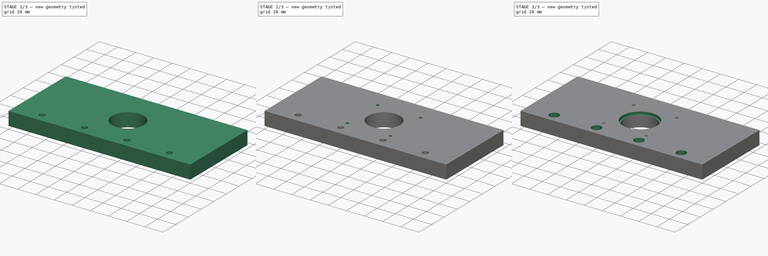
[diagram: build sequence overview — one tinted view per stage of 3, left to right]
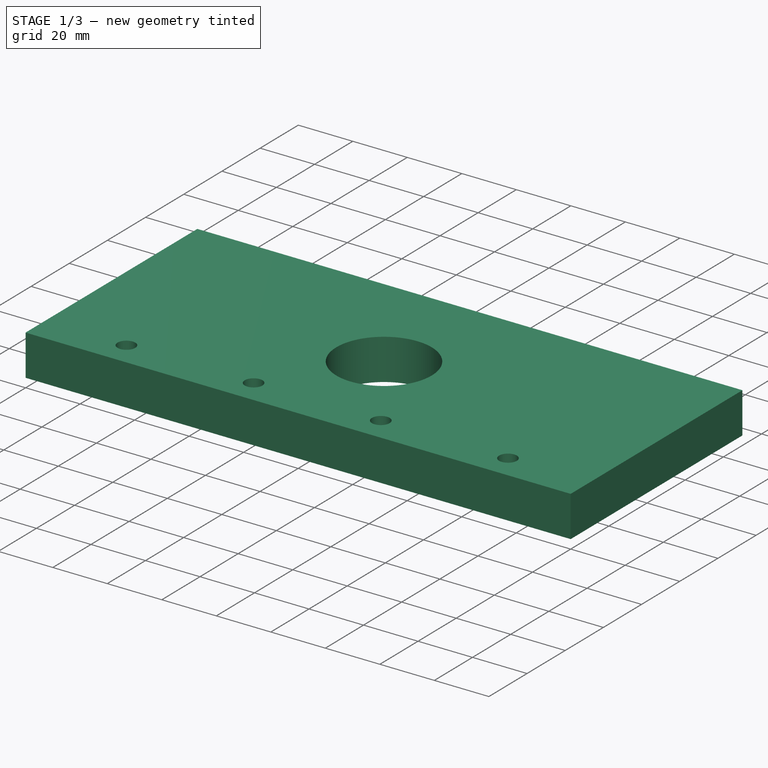
[diagram: stage 1 of 3 — iso view after this stage's code; geometry added in this stage tinted green]
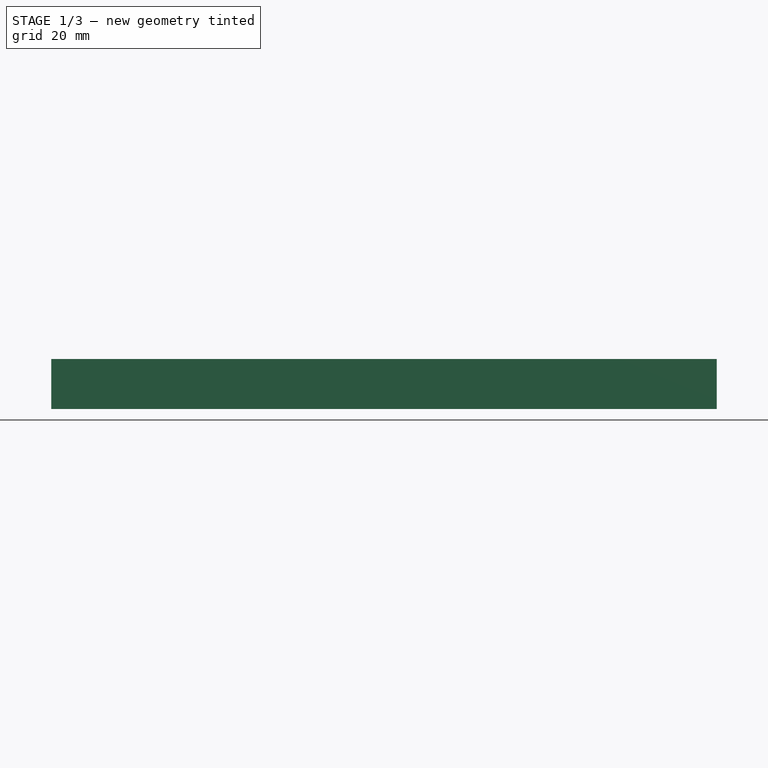
[diagram: stage 1 of 3 — front view after this stage's code; geometry added in this stage tinted green]
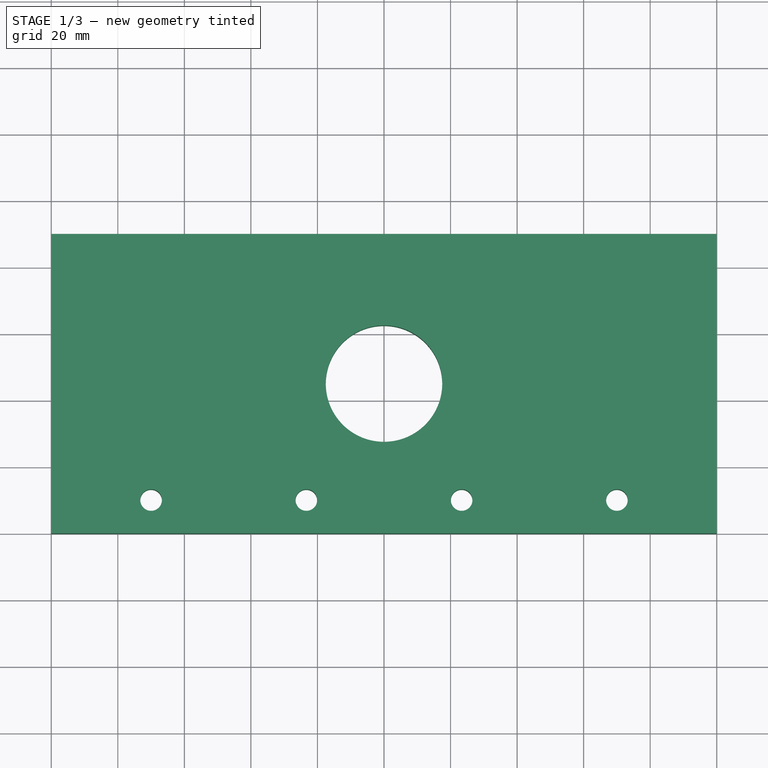
[diagram: stage 1 of 3 — top view after this stage's code; geometry added in this stage tinted green]
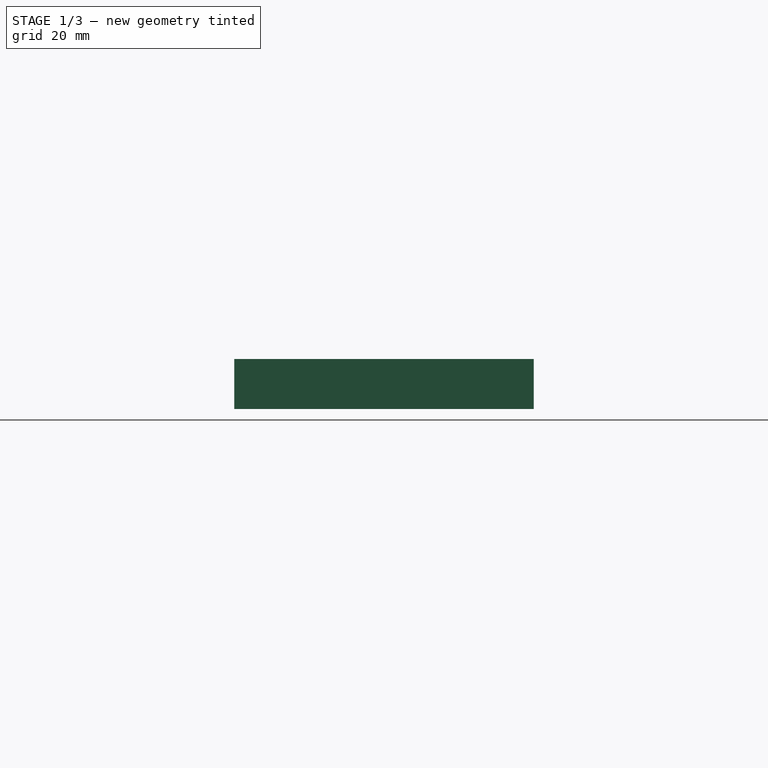
[diagram: stage 1 of 3 — right view after this stage's code; geometry added in this stage tinted green]
FCSTD DOCUMENT  (FreeCAD 0.17R9796 (Git))
Label: zmotormount
License: All rights reserved
LicenseURL: http://en.wikipedia.org/wiki/All_rights_reserved
objects: Sketcher::SketchObject×5, PartDesign::Pocket×4, PartDesign::Pad×1, PartDesign::Body×1
note: 16 computed .brp shape members not serialized (recipe doc carries the construction recipe); baked Part::Feature solids carry a one-line shape summary decoded from their .brp

FEATURE [Sketcher::SketchObject] Sketch
  MapMode = 5
  Support = -> [XY_Plane]
  sketch-geometry (4):
    g0: LineSegment StartX=0 StartY=90 StartZ=0 EndX=200 EndY=90 EndZ=0
    g1: LineSegment StartX=200 StartY=90 StartZ=0 EndX=200 EndY=0 EndZ=0
    g2: LineSegment StartX=200 StartY=0 StartZ=0 EndX=0 EndY=0 EndZ=0
    g3: LineSegment StartX=0 StartY=0 StartZ=0 EndX=0 EndY=90 EndZ=0
  constraints (11):
    c: Coincident(g0,g1)
    c: Coincident(g1,g2)
    c: Coincident(g2,g3)
    c: Coincident(g3,g0)
    c: Horizontal(g0)
    c: Horizontal(g2)
    c: Vertical(g1)
    c: Vertical(g3)
    c: Coincident(g2,g-1)
    c: DistanceY(g-1,g0) = 90
    c: DistanceX(g-1,g1) = 200
FEATURE [PartDesign::Pad] Pad
  Length = 15
  Length2 = 100
  Profile = -> Sketch
  Type = 0
FEATURE [Sketcher::SketchObject] Sketch001
  MapMode = 5
  Placement = pos=(0,0,15) rot=(0,0,1;0rad)
  Support = -> [Pad]
  sketch-geometry (5):
    g0: Circle CenterX=100 CenterY=45 CenterZ=0 NormalX=0 NormalY=0 NormalZ=1 Radius=17.5
    g1: Circle CenterX=30 CenterY=10 CenterZ=0 NormalX=0 NormalY=0 NormalZ=1 Radius=3.25
    g2: Circle CenterX=76.67 CenterY=10 CenterZ=0 NormalX=0 NormalY=0 NormalZ=1 Radius=3.25
    g3: Circle CenterX=123.33 CenterY=10 CenterZ=0 NormalX=0 NormalY=0 NormalZ=1 Radius=3.25
    g4: Circle CenterX=170 CenterY=10 CenterZ=0 NormalX=0 NormalY=0 NormalZ=1 Radius=3.25
  constraints (15):
    c: DistanceX(g-1,g0) = 100
    c: DistanceY(g-1,g0) = 45
    c: Radius(g0) = 17.5
    c: DistanceX(g-1,g1) = 30
    c: DistanceX(g-1,g4) = 170
    c: DistanceX(g-1,g3) = 123.33
    c: DistanceX(g-1,g2) = 76.67
    c: Radius(g1) = 3.25
    c: Equal(g1,g2)
    c: Equal(g1,g3)
    c: Equal(g1,g4)
    c: DistanceY(g1,g2) = 0
    c: DistanceY(g2,g3) = 0
    c: DistanceY(g3,g4) = 0
    c: DistanceY(g-1,g1) = 10
FEATURE [PartDesign::Pocket] Pocket
  BaseFeature = -> Pad
  Length = 15
  Profile = -> Sketch001
  Type = 0
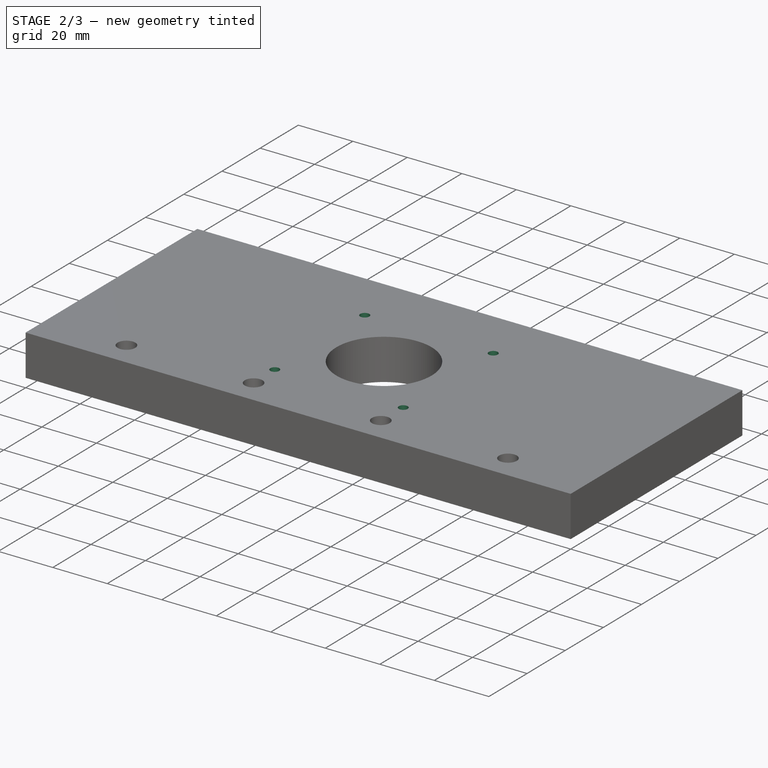
[diagram: stage 2 of 3 — iso view after this stage's code; geometry added in this stage tinted green]
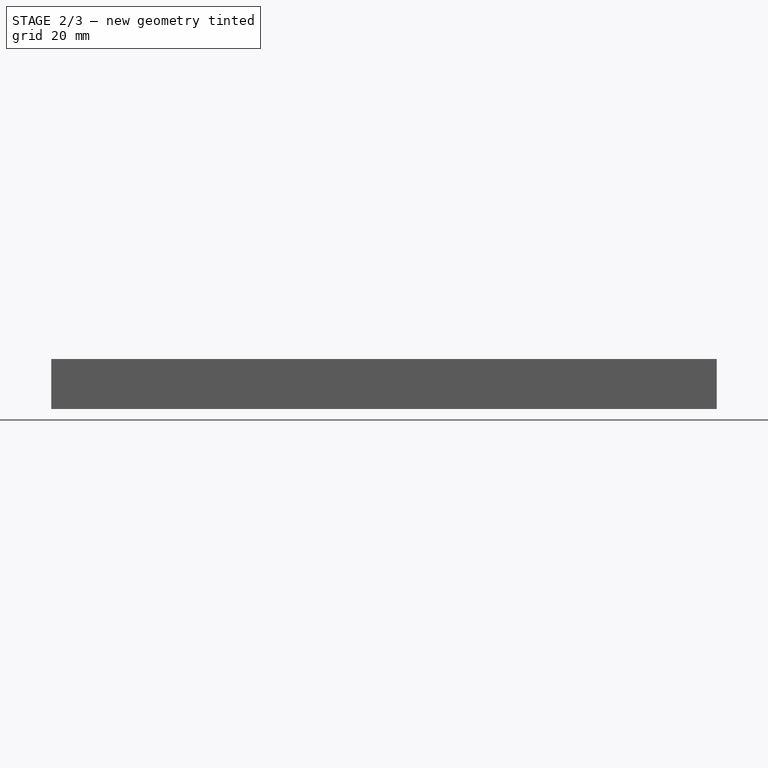
[diagram: stage 2 of 3 — front view after this stage's code; geometry added in this stage tinted green]
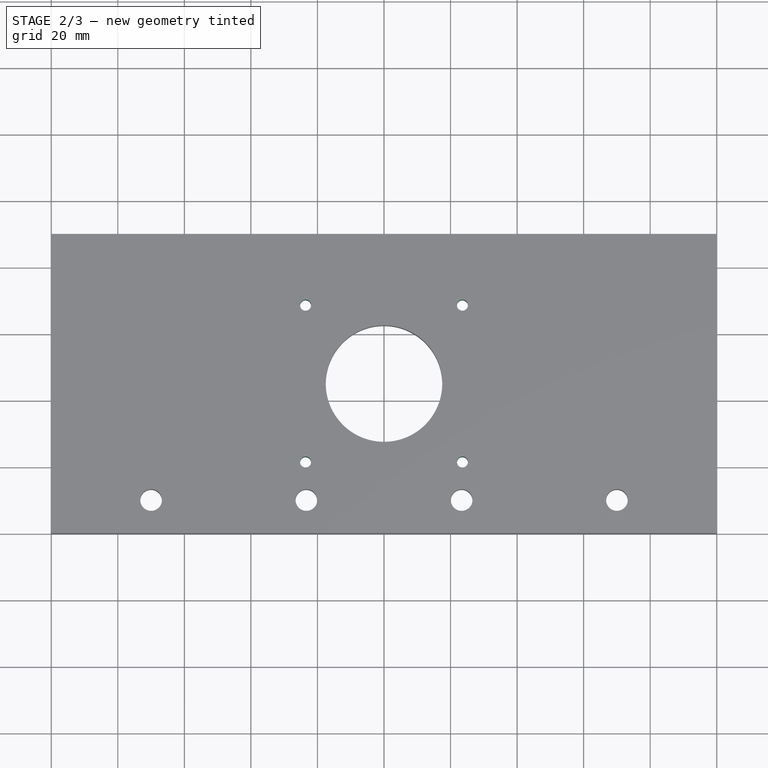
[diagram: stage 2 of 3 — top view after this stage's code; geometry added in this stage tinted green]
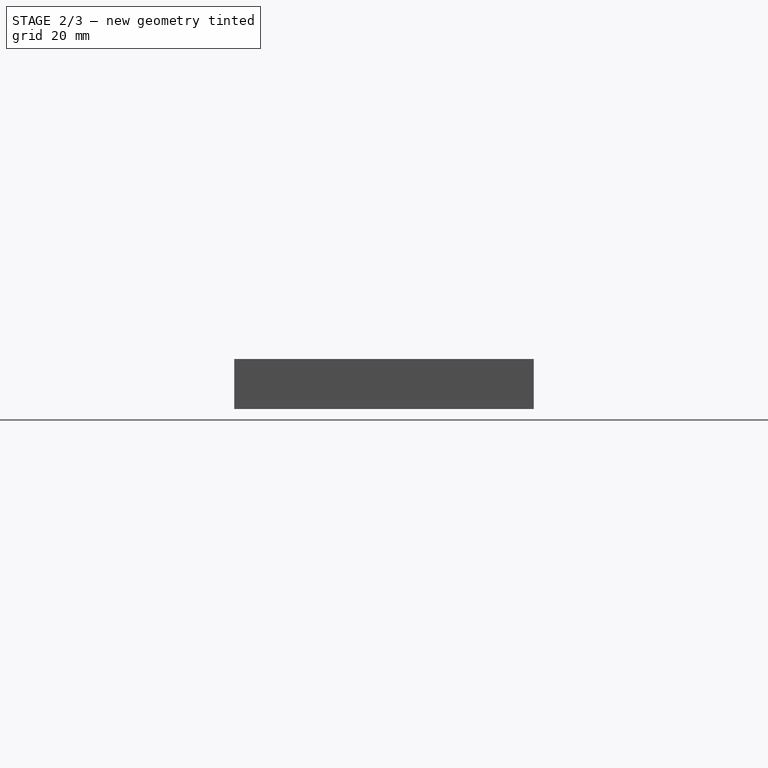
[diagram: stage 2 of 3 — right view after this stage's code; geometry added in this stage tinted green]
FEATURE [Sketcher::SketchObject] Sketch002
  MapMode = 5
  Placement = pos=(0,0,15) rot=(0,0,1;0rad)
  Support = -> [Pocket]
  sketch-geometry (4):
    g0: Circle CenterX=76.43 CenterY=68.57 CenterZ=0 NormalX=0 NormalY=0 NormalZ=1 Radius=1.65
    g1: Circle CenterX=123.57 CenterY=68.57 CenterZ=0 NormalX=0 NormalY=0 NormalZ=1 Radius=1.65
    g2: Circle CenterX=76.43 CenterY=21.43 CenterZ=0 NormalX=0 NormalY=0 NormalZ=1 Radius=1.65
    g3: Circle CenterX=123.57 CenterY=21.43 CenterZ=0 NormalX=0 NormalY=0 NormalZ=1 Radius=1.65
  constraints (12):
    c: DistanceX(g-1,g2) = 76.43
    c: DistanceX(g2,g3) = 47.14
    c: DistanceX(g0,g2) = 0
    c: DistanceX(g3,g1) = 0
    c: DistanceY(g2,g0) = 47.14
    c: DistanceY(g0,g1) = 0
    c: DistanceY(g3,g2) = 0
    c: DistanceY(g-1,g2) = 21.43
    c: Radius(g0) = 1.65
    c: Equal(g0,g1)
    c: Equal(g0,g3)
    c: Equal(g0,g2)
FEATURE [PartDesign::Pocket] Pocket001
  BaseFeature = -> Pocket
  Length = 15
  Profile = -> Sketch002
  Type = 0
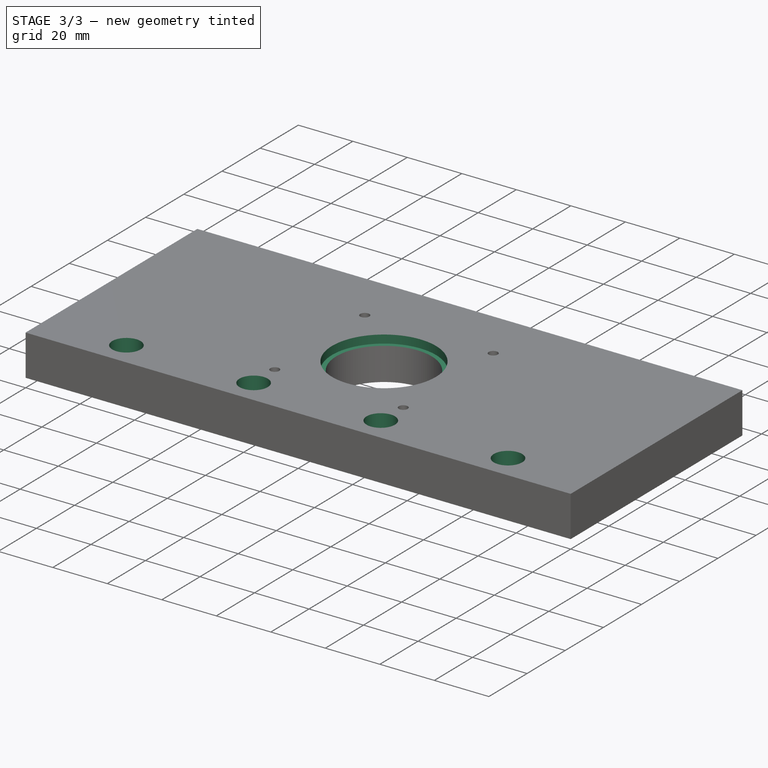
[diagram: stage 3 of 3 — iso view after this stage's code; geometry added in this stage tinted green]
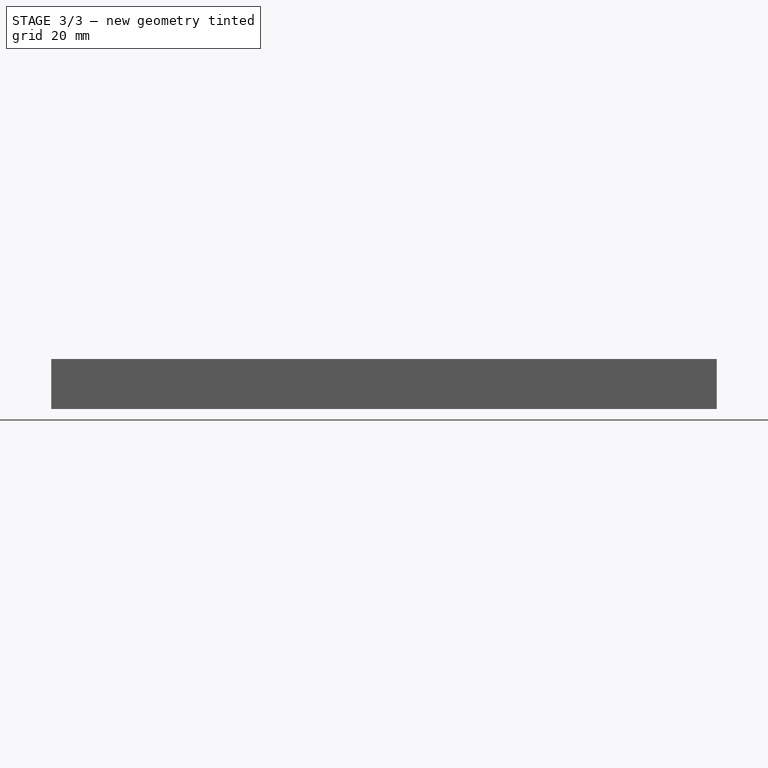
[diagram: stage 3 of 3 — front view after this stage's code; geometry added in this stage tinted green]
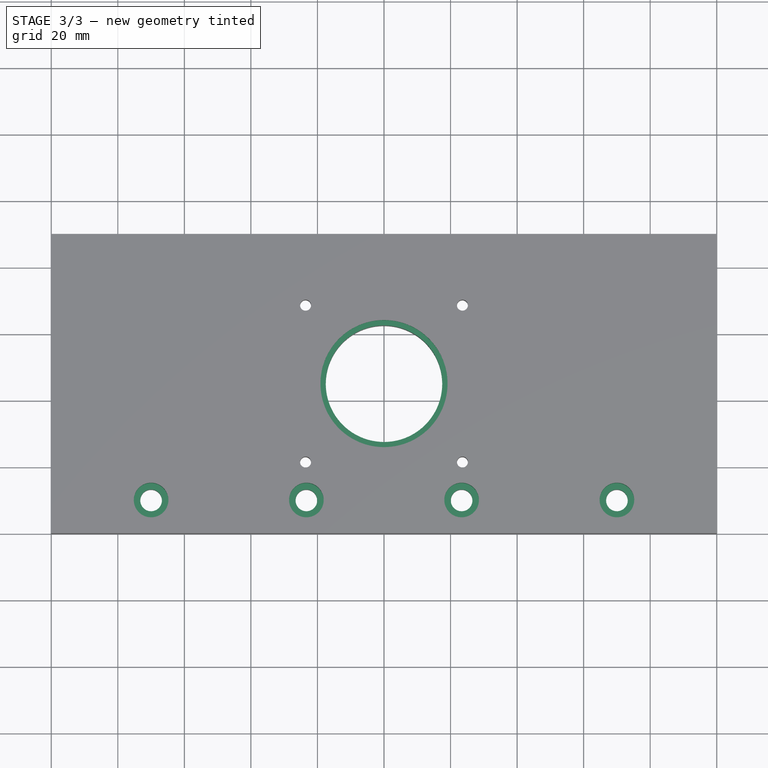
[diagram: stage 3 of 3 — top view after this stage's code; geometry added in this stage tinted green]
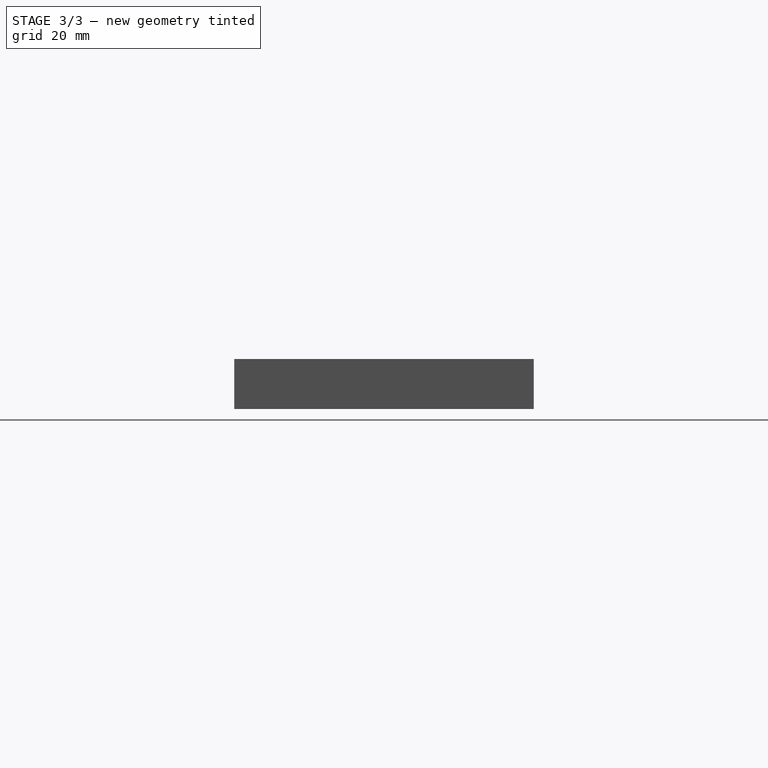
[diagram: stage 3 of 3 — right view after this stage's code; geometry added in this stage tinted green]
FEATURE [Sketcher::SketchObject] Sketch003
  MapMode = 5
  Placement = pos=(0,0,15) rot=(0,0,1;0rad)
  Support = -> [Pocket001]
  sketch-geometry (1):
    g0: Circle CenterX=100 CenterY=45 CenterZ=0 NormalX=0 NormalY=0 NormalZ=1 Radius=19.1
  constraints (3):
    c: DistanceX(g-1,g0) = 100
    c: DistanceY(g-1,g0) = 45
    c: Radius(g0) = 19.1
FEATURE [PartDesign::Pocket] Pocket002
  BaseFeature = -> Pocket001
  Length = 3
  Profile = -> Sketch003
  Type = 0
FEATURE [Sketcher::SketchObject] Sketch004
  MapMode = 5
  Placement = pos=(0,0,15) rot=(0,0,1;0rad)
  Support = -> [Pocket002]
  sketch-geometry (4):
    g0: Circle CenterX=30 CenterY=10 CenterZ=0 NormalX=0 NormalY=0 NormalZ=1 Radius=5.2
    g1: Circle CenterX=76.67 CenterY=10 CenterZ=0 NormalX=0 NormalY=0 NormalZ=1 Radius=5.2
    g2: Circle CenterX=123.33 CenterY=10 CenterZ=0 NormalX=0 NormalY=0 NormalZ=1 Radius=5.2
    g3: Circle CenterX=170 CenterY=10 CenterZ=0 NormalX=0 NormalY=0 NormalZ=1 Radius=5.2
  constraints (12):
    c: DistanceY(g2,g3) = 0
    c: DistanceY(g1,g2) = 0
    c: DistanceY(g0,g1) = 0
    c: DistanceX(g-1,g0) = 30
    c: DistanceX(g-1,g1) = 76.67
    c: DistanceX(g-1,g2) = 123.33
    c: DistanceX(g-1,g3) = 170
    c: DistanceY(g-1,g0) = 10
    c: Radius(g0) = 5.2
    c: Equal(g0,g1)
    c: Equal(g0,g2)
    c: Equal(g0,g3)
FEATURE [PartDesign::Pocket] Pocket003
  BaseFeature = -> Pocket002
  Length = 7
  Profile = -> Sketch004
  Type = 0
FEATURE [PartDesign::Body] Body
  Group = -> [Sketch,Pad,Sketch001,Pocket,Sketch002,Pocket001,Sketch003,Pocket002,Sketch004,Pocket003]
  Origin = -> BodyOrigin
  Tip = -> Pocket003
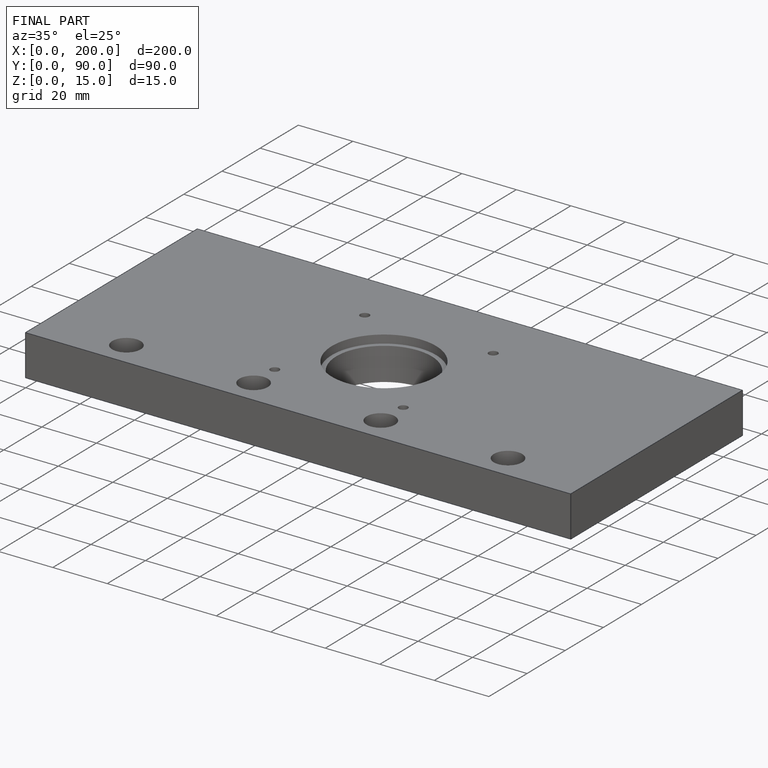
[diagram: finished part — iso view with bounding-box wireframe]
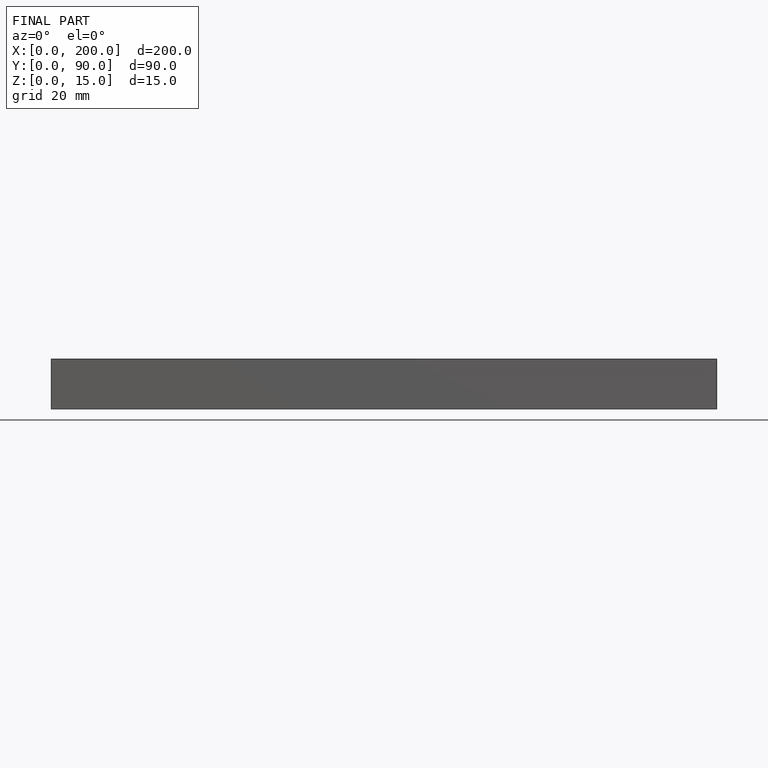
[diagram: finished part — front view with bounding-box wireframe]
